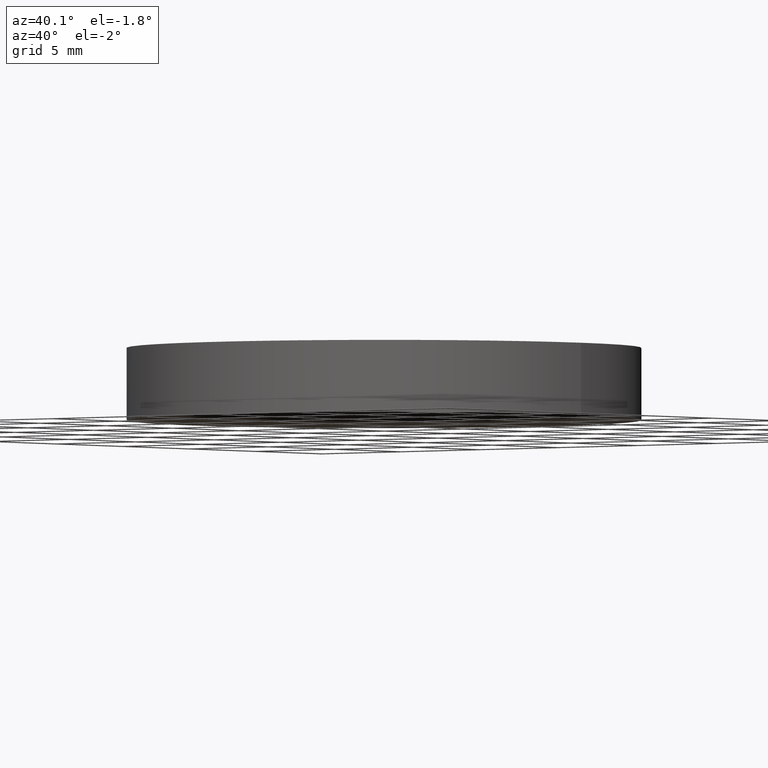
[diagram: clean part render]
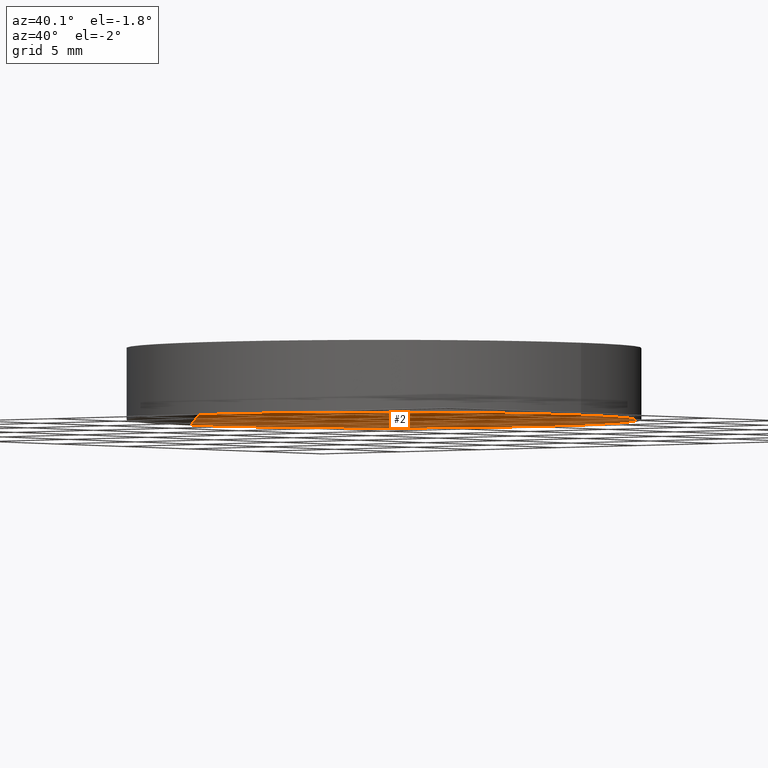
[diagram: same view with one face highlighted and labeled with its STEP entity id]
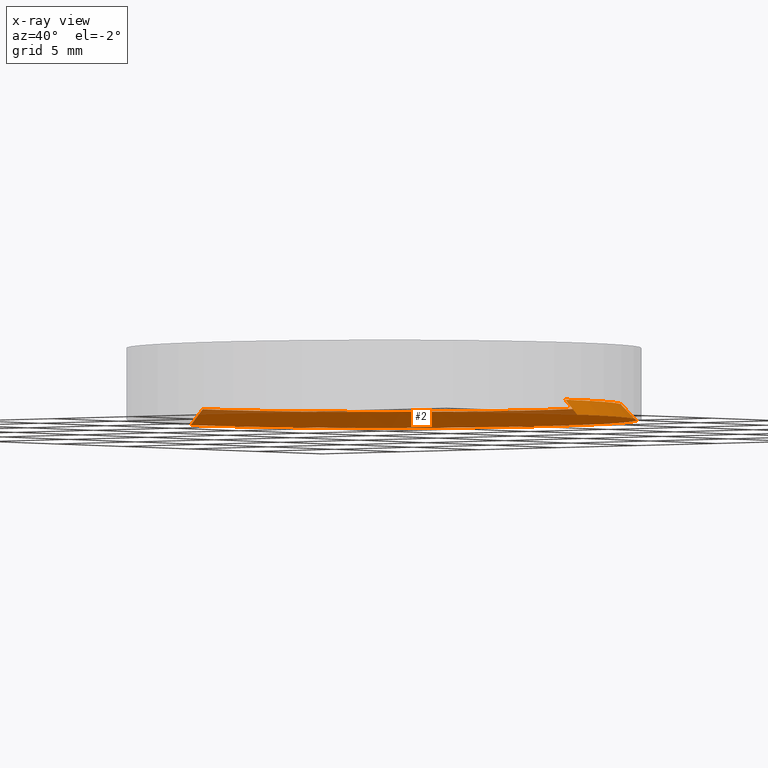
[diagram: x-ray of the same camera — body ghosted, the highlighted face saturated]
A machine part, auxiliary view. The second image highlights one B-rep face of the part: STEP entity #2.
The next image is the same camera in x-ray: the body ghosted, the highlighted face saturated — about 9% of this face is hidden behind the body in this view.
In plain terms, the highlighted conical surface has half-angle 45 deg.
Its self-contained STEP definition (entity closure, byte-faithful):
#2 = ADVANCED_FACE ( 'NONE', ( #293 ), #280, .F. ) ;
#8 = ORIENTED_EDGE ( 'NONE', *, *, #74, .F. ) ;
#18 = DIRECTION ( 'NONE',  ( 1.000000000000000000, 0.000000000000000000, 0.000000000000000000 ) ) ;
#20 = DIRECTION ( 'NONE',  ( 0.000000000000000000, 0.000000000000000000, -1.000000000000000000 ) ) ;
#24 = DIRECTION ( 'NONE',  ( -1.000000000000000000, 0.000000000000000000, 0.000000000000000000 ) ) ;
#33 = VECTOR ( 'NONE', #112, 1000.000000000000000 ) ;
#48 = EDGE_CURVE ( 'NONE', #299, #268, #374, .T. ) ;
#49 = DIRECTION ( 'NONE',  ( -0.7071067811865467956, 0.000000000000000000, -0.7071067811865483499 ) ) ;
#73 = LINE ( 'NONE', #202, #33 ) ;
#74 = EDGE_CURVE ( 'NONE', #164, #347, #73, .T. ) ;
#79 = EDGE_CURVE ( 'NONE', #347, #268, #156, .T. ) ;
#89 = AXIS2_PLACEMENT_3D ( 'NONE', #175, #20, #24 ) ;
#108 = CARTESIAN_POINT ( 'NONE',  ( -12.25000000000000711, 0.000000000000000000, 0.000000000000000000 ) ) ;
#112 = DIRECTION ( 'NONE',  ( 0.7071067811865467956, 8.659560562354925463E-17, -0.7071067811865483499 ) ) ;
#117 = DIRECTION ( 'NONE',  ( -1.000000000000000000, 0.000000000000000000, 0.000000000000000000 ) ) ;
#124 = EDGE_CURVE ( 'NONE', #299, #164, #392, .T. ) ;
#132 = ORIENTED_EDGE ( 'NONE', *, *, #124, .F. ) ;
#156 = CIRCLE ( 'NONE', #271, 12.25000000000000711 ) ;
#164 = VERTEX_POINT ( 'NONE', #375 ) ;
#175 = CARTESIAN_POINT ( 'NONE',  ( 0.000000000000000000, 0.000000000000000000, 0.7500000000000000000 ) ) ;
#202 = CARTESIAN_POINT ( 'NONE',  ( 11.50000000000000000, 1.408343819019456176E-15, 0.7500000000000093259 ) ) ;
#203 = CARTESIAN_POINT ( 'NONE',  ( 0.000000000000000000, 0.000000000000000000, 0.000000000000000000 ) ) ;
#221 = CARTESIAN_POINT ( 'NONE',  ( 0.000000000000000000, 0.000000000000000000, 0.7500000000000093259 ) ) ;
#241 = DIRECTION ( 'NONE',  ( 0.000000000000000000, 0.000000000000000000, -1.000000000000000000 ) ) ;
#258 = ORIENTED_EDGE ( 'NONE', *, *, #48, .T. ) ;
#268 = VERTEX_POINT ( 'NONE', #108 ) ;
#271 = AXIS2_PLACEMENT_3D ( 'NONE', #203, #337, #18 ) ;
#280 = CONICAL_SURFACE ( 'NONE', #355, 11.50000000000000000, 0.7853981633974471688 ) ;
#293 = FACE_OUTER_BOUND ( 'NONE', #410, .T. ) ;
#299 = VERTEX_POINT ( 'NONE', #382 ) ;
#337 = DIRECTION ( 'NONE',  ( 0.000000000000000000, 0.000000000000000000, 1.000000000000000000 ) ) ;
#347 = VERTEX_POINT ( 'NONE', #399 ) ;
#355 = AXIS2_PLACEMENT_3D ( 'NONE', #221, #241, #117 ) ;
#368 = CARTESIAN_POINT ( 'NONE',  ( -11.50000000000000000, 0.000000000000000000, 0.7500000000000093259 ) ) ;
#374 = LINE ( 'NONE', #368, #405 ) ;
#375 = CARTESIAN_POINT ( 'NONE',  ( 11.50000000000000000, 1.454268073987482448E-15, 0.7500000000000000000 ) ) ;
#382 = CARTESIAN_POINT ( 'NONE',  ( -11.50000000000000000, 0.000000000000000000, 0.7500000000000000000 ) ) ;
#392 = CIRCLE ( 'NONE', #89, 11.50000000000000000 ) ;
#399 = CARTESIAN_POINT ( 'NONE',  ( 12.25000000000000711, 1.500192328955508523E-15, 0.000000000000000000 ) ) ;
#405 = VECTOR ( 'NONE', #49, 1000.000000000000000 ) ;
#410 = EDGE_LOOP ( 'NONE', ( #8, #132, #258, #420 ) ) ;
#420 = ORIENTED_EDGE ( 'NONE', *, *, #79, .F. ) ;